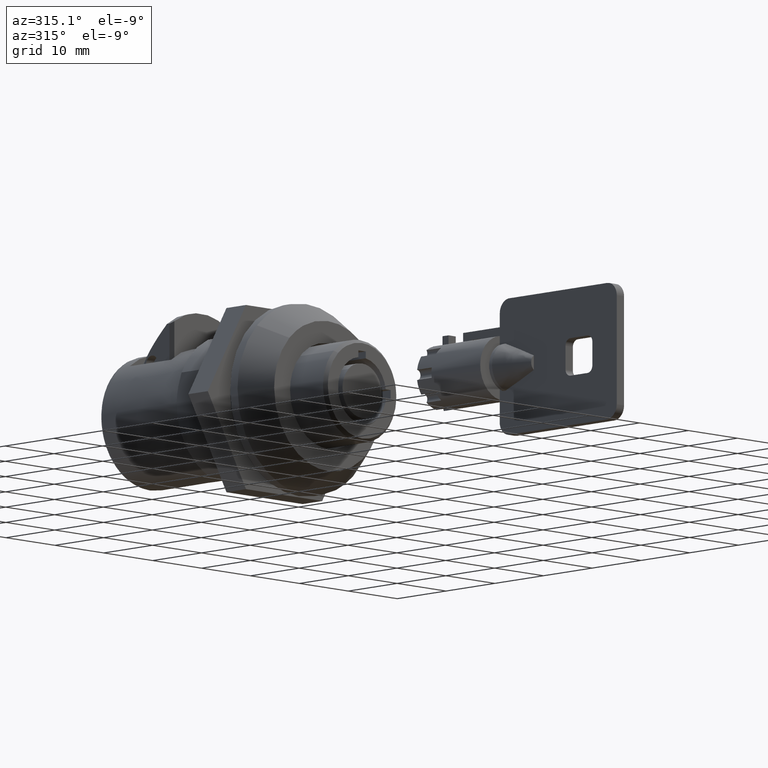
[diagram: clean part render]
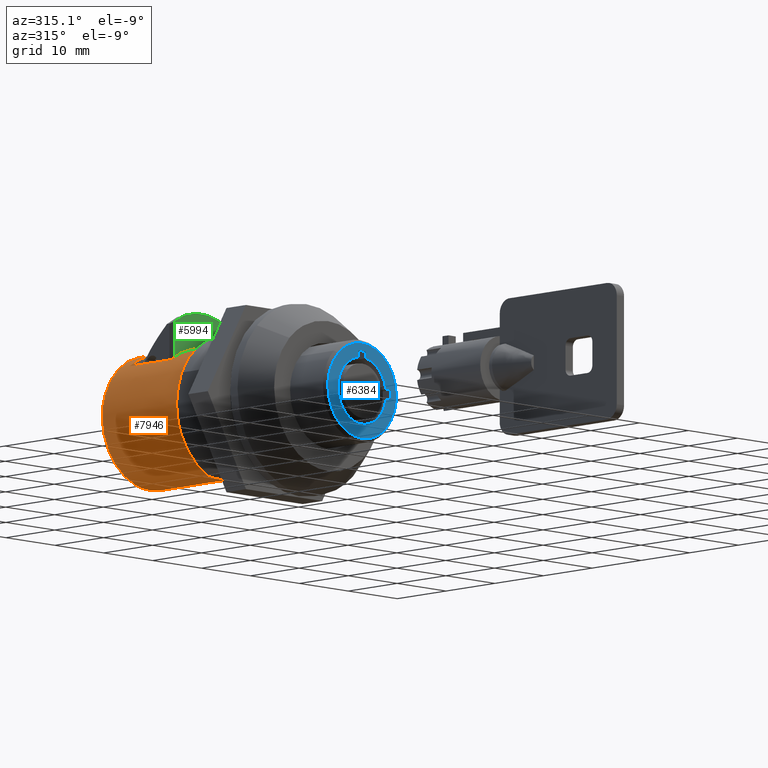
[diagram: same view with three faces highlighted in distinct colors, each labeled with its STEP entity id]
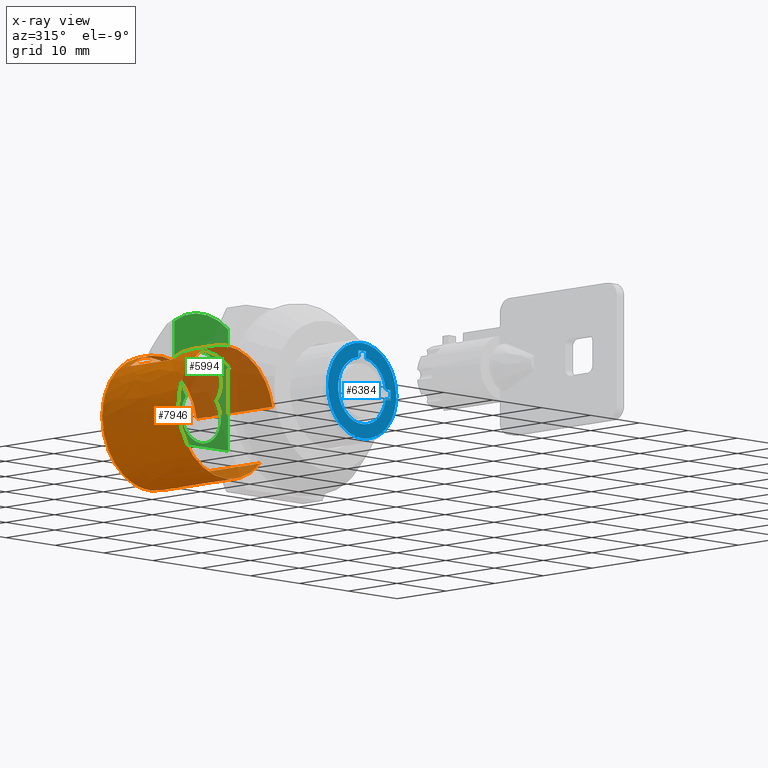
[diagram: x-ray of the same camera — body ghosted, the three highlighted faces saturated]
A machine part, auxiliary view with three faces highlighted in distinct colors.
The next image is the same camera in x-ray (body ghosted, the three faces saturated) — at least one of them is partly hidden behind the body in this view.
Their STEP definitions:

[orange] entity #7946 — the highlighted face is a freeform B-spline surface patch.
#7750=CARTESIAN_POINT('',(30.887500012417789,-9.575236335959792,1.837756542775800));
#7751=CARTESIAN_POINT('',(30.887500012417789,-8.986460965124264,4.905444342176716));
#7752=CARTESIAN_POINT('',(30.887500012417782,-6.724640534539272,7.059866123463766));
#7753=CARTESIAN_POINT('',(30.887500012417789,0.335225588924494,13.784506658003037));
#7754=CARTESIAN_POINT('',(30.887500012417782,7.059866123463766,6.724640534539272));
#7755=CARTESIAN_POINT('',(30.887500012417789,13.784506658003037,-0.335225588924494));
#7756=CARTESIAN_POINT('',(30.887500012417782,6.724640534539272,-7.059866123463766));
#7757=CARTESIAN_POINT('',(30.887500012417789,-0.335225588924494,-13.784506658003037));
#7758=CARTESIAN_POINT('',(30.887500012417782,-7.059866123463766,-6.724640534539272));
#7759=CARTESIAN_POINT('',(14.602812499689561,-9.575236335959792,1.837756542775800));
#7760=CARTESIAN_POINT('',(14.602812499689557,-8.986460965124264,4.905444342176716));
#7761=CARTESIAN_POINT('',(14.602812499689559,-6.724640534539272,7.059866123463766));
#7762=CARTESIAN_POINT('',(14.602812499689565,0.335225588924494,13.784506658003037));
#7763=CARTESIAN_POINT('',(14.602812499689559,7.059866123463766,6.724640534539272));
#7764=CARTESIAN_POINT('',(14.602812499689565,13.784506658003037,-0.335225588924494));
#7765=CARTESIAN_POINT('',(14.602812499689559,6.724640534539272,-7.059866123463766));
#7766=CARTESIAN_POINT('',(14.602812499689565,-0.335225588924494,-13.784506658003037));
#7767=CARTESIAN_POINT('',(14.602812499689559,-7.059866123463766,-6.724640534539272));
#7775=(BOUNDED_SURFACE()B_SPLINE_SURFACE(2,1,((#7750,#7759),(#7751,#7760),(#7752,#7761),(#7753,#7762),(#7754,#7763),(#7755,#7764),(#7756,#7765),(#7757,#7766),(#7758,#7767)),.UNSPECIFIED.,.F.,.F.,.U.)B_SPLINE_SURFACE_WITH_KNOTS((3,2,2,2,3),(2,2),(0.0,6.461731573020280,22.616060505570982,38.770389438121683,54.924718370672380),(0.0,16.284687512728230),.UNSPECIFIED.)GEOMETRIC_REPRESENTATION_ITEM()RATIONAL_B_SPLINE_SURFACE(((0.859411254969543,0.859411254969543),(0.882842712474619,0.882842712474619),(1.0,1.0),(0.707106781186548,0.707106781186548),(1.0,1.0),(0.707106781186548,0.707106781186548),(1.0,1.0),(0.707106781186548,0.707106781186548),(1.0,1.0)))REPRESENTATION_ITEM('')SURFACE());
#7776=CARTESIAN_POINT('',(15.0,0.0,9.750000000000000));
#7777=VERTEX_POINT('',#7776);
#7778=CARTESIAN_POINT('',(15.0,-9.575235954214422,1.837756690825241));
#7779=VERTEX_POINT('',#7778);
#7780=CARTESIAN_POINT('',(15.0,0.0,9.750000000000000));
#7781=CARTESIAN_POINT('',(15.000000000000030,-0.701378239209372,9.750134308408958));
#7782=CARTESIAN_POINT('',(14.999999999999959,-1.963774436291842,9.613098461667986));
#7783=CARTESIAN_POINT('',(15.000000000000069,-4.114769771421813,8.943202647147343));
#7784=CARTESIAN_POINT('',(14.999999999999901,-5.940571970627088,7.849894564205144));
#7785=CARTESIAN_POINT('',(15.000000000000160,-7.396122702858431,6.418186912531861));
#7786=CARTESIAN_POINT('',(14.999999999999780,-8.726195977203584,4.602339214833864));
#7787=CARTESIAN_POINT('',(15.000000000000099,-9.351534012249450,3.009125863314432));
#7788=CARTESIAN_POINT('',(15.0,-9.575235954214422,1.837756690825241));
#7789=B_SPLINE_CURVE_WITH_KNOTS('',3,(#7780,#7781,#7782,#7783,#7784,#7785,#7786,#7787,#7788),.UNSPECIFIED.,.F.,.U.,(4,1,1,1,1,1,4),(0.000000090942907,2.104148853622325,3.787520572596170,6.733354511299822,8.416681903232394,9.889614118391801,13.466708852423629),.UNSPECIFIED.);
#7790=EDGE_CURVE('',#7777,#7779,#7789,.T.);
#7791=ORIENTED_EDGE('',*,*,#7790,.T.);
#7792=CARTESIAN_POINT('',(30.500000010084879,-9.575236361634874,1.837756408862489));
#7793=VERTEX_POINT('',#7792);
#7794=CARTESIAN_POINT('',(30.500000010084879,-9.575236361634874,1.837756408862489));
#7795=CARTESIAN_POINT('',(15.0,-9.575235954214422,1.837756690825241));
#7796=QUASI_UNIFORM_CURVE('',1,(#7794,#7795),.UNSPECIFIED.,.F.,.U.);
#7797=EDGE_CURVE('',#7793,#7779,#7796,.T.);
#7798=ORIENTED_EDGE('',*,*,#7797,.F.);
#7799=CARTESIAN_POINT('',(30.500000000000000,0.0,9.750000000000000));
#7800=VERTEX_POINT('',#7799);
#7801=CARTESIAN_POINT('',(30.500000010084879,-9.575236361634874,1.837756408862489));
#7802=CARTESIAN_POINT('',(30.500000008679869,-9.364547239611097,2.940165503869704));
#7803=CARTESIAN_POINT('',(30.500000006644271,-8.757740680214649,4.537040305446049));
#7804=CARTESIAN_POINT('',(30.500000004017569,-7.282596078759746,6.598035719895504));
#7805=CARTESIAN_POINT('',(30.500000002387750,-5.864412707666842,7.876734742142462));
#7806=CARTESIAN_POINT('',(30.500000001030759,-4.042352538201674,8.941239096149648));
#7807=CARTESIAN_POINT('',(30.500000000203510,-2.174250680371034,9.590433614365638));
#7808=CARTESIAN_POINT('',(30.499999999999719,-0.701379061122600,9.750100271397827));
#7809=CARTESIAN_POINT('',(30.500000000000000,0.0,9.750000000000000));
#7810=B_SPLINE_CURVE_WITH_KNOTS('',3,(#7801,#7802,#7803,#7804,#7805,#7806,#7807,#7808,#7809),.UNSPECIFIED.,.F.,.U.,(4,1,1,1,1,1,4),(0.000000090967832,3.366678364588205,5.050042985061971,7.575009541874530,9.047940089374050,11.362543443225730,13.466709445660831),.UNSPECIFIED.);
#7811=EDGE_CURVE('',#7793,#7800,#7810,.T.);
#7812=ORIENTED_EDGE('',*,*,#7811,.T.);
#7813=CARTESIAN_POINT('',(30.500000012114910,9.746920845494230,-0.245018431286253));
#7814=VERTEX_POINT('',#7813);
#7815=CARTESIAN_POINT('',(30.500000000000000,0.0,9.750000000000000));
#7816=CARTESIAN_POINT('',(30.499999999093880,1.013092681210853,9.750480910974837));
#7817=CARTESIAN_POINT('',(30.499999998132228,2.714689931568575,9.482322325671769));
#7818=CARTESIAN_POINT('',(30.499999998196639,4.763203080173201,8.572948534103039));
#7819=CARTESIAN_POINT('',(30.499999999073658,6.368574713254065,7.463521467947231));
#7820=CARTESIAN_POINT('',(30.500000000948440,7.877704026248915,5.916434524828425));
#7821=CARTESIAN_POINT('',(30.500000003669840,8.879530921401964,4.180551368303318));
#7822=CARTESIAN_POINT('',(30.500000007422809,9.603225033190121,2.068826946260913));
#7823=CARTESIAN_POINT('',(30.500000010067211,9.771849406930603,0.727251562585743));
#7824=CARTESIAN_POINT('',(30.500000012114910,9.746920845494230,-0.245018431286253));
#7825=B_SPLINE_CURVE_WITH_KNOTS('',3,(#7815,#7816,#7817,#7818,#7819,#7820,#7821,#7822,#7823,#7824),.UNSPECIFIED.,.F.,.U.,(4,1,1,1,1,1,1,4),(0.000000347490774,3.039132615368121,5.105764066161658,6.686187409674874,8.874229731523744,11.548739831742321,12.642840747398520,15.560409197416410),.UNSPECIFIED.);
#7826=EDGE_CURVE('',#7800,#7814,#7825,.T.);
#7827=ORIENTED_EDGE('',*,*,#7826,.T.);
#7828=CARTESIAN_POINT('',(30.500000000000000,0.0,-9.750000000000000));
#7829=VERTEX_POINT('',#7828);
#7830=CARTESIAN_POINT('',(30.500000012114910,9.746920845494230,-0.245018431286253));
#7831=CARTESIAN_POINT('',(30.500000010814730,9.721731147217900,-1.265115082189658));
#7832=CARTESIAN_POINT('',(30.500000008474171,9.382850598089297,-3.101471756152618));
#7833=CARTESIAN_POINT('',(30.500000005635890,8.263049379798758,-5.328192014080990));
#7834=CARTESIAN_POINT('',(30.500000003813419,7.084300288456885,-6.758167633359849));
#7835=CARTESIAN_POINT('',(30.500000002384940,5.818356376357710,-7.878682289463930));
#7836=CARTESIAN_POINT('',(30.500000001234270,4.382460327815803,-8.782029739600427));
#7837=CARTESIAN_POINT('',(30.500000000253738,2.354588581331351,-9.550538173203449));
#7838=CARTESIAN_POINT('',(30.499999999999719,0.863424000027773,-9.750275924204781));
#7839=CARTESIAN_POINT('',(30.500000000000000,0.0,-9.750000000000000));
#7840=B_SPLINE_CURVE_WITH_KNOTS('',3,(#7830,#7831,#7832,#7833,#7834,#7835,#7836,#7837,#7838,#7839),.UNSPECIFIED.,.F.,.U.,(4,1,1,1,1,1,1,4),(0.000000337253466,3.061140910834464,5.533681545099439,7.417525461301741,8.594785953707202,10.596296500282531,12.480114029688220,15.070311516149570),.UNSPECIFIED.);
#7841=EDGE_CURVE('',#7814,#7829,#7840,.T.);
#7842=ORIENTED_EDGE('',*,*,#7841,.T.);
#7843=CARTESIAN_POINT('',(30.499999999995818,-7.059866225883638,-6.724640427013735));
#7844=VERTEX_POINT('',#7843);
#7845=CARTESIAN_POINT('',(30.500000000000000,0.0,-9.750000000000000));
#7846=CARTESIAN_POINT('',(30.499999999338499,-0.740145184888274,-9.750149389962791));
#7847=CARTESIAN_POINT('',(30.499999998450079,-2.096953021290323,-9.594730436027437));
#7848=CARTESIAN_POINT('',(30.499999998110731,-3.820554661038805,-9.018536396668702));
#7849=CARTESIAN_POINT('',(30.499999998462819,-5.496068493920325,-8.131059901282530));
#7850=CARTESIAN_POINT('',(30.499999999261359,-6.492839162516940,-7.320308494973498));
#7851=CARTESIAN_POINT('',(30.499999999995818,-7.059866225883638,-6.724640427013735));
#7852=B_SPLINE_CURVE_WITH_KNOTS('',3,(#7845,#7846,#7847,#7848,#7849,#7850,#7851),.UNSPECIFIED.,.F.,.U.,(4,1,1,1,4),(0.000000090268977,2.220403589481474,4.070679268285906,5.427633777709034,7.894748536161674),.UNSPECIFIED.);
#7853=EDGE_CURVE('',#7829,#7844,#7852,.T.);
#7854=ORIENTED_EDGE('',*,*,#7853,.T.);
#7855=CARTESIAN_POINT('',(15.0,-7.059866604420248,-6.724641386947026));
#7856=VERTEX_POINT('',#7855);
#7857=CARTESIAN_POINT('',(30.499999999995818,-7.059866225883638,-6.724640427013735));
#7858=CARTESIAN_POINT('',(15.0,-7.059866604420248,-6.724641386947026));
#7859=QUASI_UNIFORM_CURVE('',1,(#7857,#7858),.UNSPECIFIED.,.F.,.U.);
#7860=EDGE_CURVE('',#7844,#7856,#7859,.T.);
#7861=ORIENTED_EDGE('',*,*,#7860,.T.);
#7862=CARTESIAN_POINT('',(15.0,0.0,-9.750000000000000));
#7863=VERTEX_POINT('',#7862);
#7864=CARTESIAN_POINT('',(15.0,-7.059866604420248,-6.724641386947026));
#7865=CARTESIAN_POINT('',(15.0,-6.436173498619394,-7.379906755563649));
#7866=CARTESIAN_POINT('',(15.0,-5.069683735097596,-8.463092961906972));
#7867=CARTESIAN_POINT('',(15.0,-2.631424184494847,-9.507915745344079));
#7868=CARTESIAN_POINT('',(15.0,-0.904638419642506,-9.750346713921864));
#7869=CARTESIAN_POINT('',(15.0,0.0,-9.750000000000000));
#7870=B_SPLINE_CURVE_WITH_KNOTS('',3,(#7864,#7865,#7866,#7867,#7868,#7869),.UNSPECIFIED.,.F.,.U.,(4,1,1,4),(0.000000090255180,2.713824443372771,5.180924128025984,7.894748481170695),.UNSPECIFIED.);
#7871=EDGE_CURVE('',#7856,#7863,#7870,.T.);
#7872=ORIENTED_EDGE('',*,*,#7871,.T.);
#7873=CARTESIAN_POINT('',(15.0,9.749999999999279,0.000003749098724));
#7874=VERTEX_POINT('',#7873);
#7875=CARTESIAN_POINT('',(15.0,0.0,-9.750000000000000));
#7876=CARTESIAN_POINT('',(15.000000000000020,0.877444515751279,-9.750270754474048));
#7877=CARTESIAN_POINT('',(15.0,2.632241632552412,-9.511592154185697));
#7878=CARTESIAN_POINT('',(15.0,4.777801193282067,-8.591896934206536));
#7879=CARTESIAN_POINT('',(14.999999999999959,6.497216051840085,-7.348836252404584));
#7880=CARTESIAN_POINT('',(15.000000000000060,7.733467366679887,-6.034336726053471));
#7881=CARTESIAN_POINT('',(14.999999999999970,8.804341201007693,-4.343337748134421));
#7882=CARTESIAN_POINT('',(14.999999999999829,9.558089632355411,-2.353054724874983));
#7883=CARTESIAN_POINT('',(15.000000000000179,9.750184481208429,-0.797667818462141));
#7884=CARTESIAN_POINT('',(15.0,9.749999999999279,0.000003749098724));
#7885=B_SPLINE_CURVE_WITH_KNOTS('',3,(#7875,#7876,#7877,#7878,#7879,#7880,#7881,#7882,#7883,#7884),.UNSPECIFIED.,.F.,.U.,(4,1,1,1,1,1,1,4),(0.000000342032235,2.632297320754040,5.264697061244325,6.939863715187643,8.973785854081310,10.648953230941810,12.922375153078990,15.315362396130110),.UNSPECIFIED.);
#7886=EDGE_CURVE('',#7863,#7874,#7885,.T.);
#7887=ORIENTED_EDGE('',*,*,#7886,.T.);
#7888=CARTESIAN_POINT('',(15.0,9.749999999999279,0.000003749098724));
#7889=CARTESIAN_POINT('',(14.999999999999959,9.750055175266878,0.598240313241467));
#7890=CARTESIAN_POINT('',(15.000000000000041,9.635875015548640,1.834608786216606));
#7891=CARTESIAN_POINT('',(15.0,9.122484409377741,3.605197535700354));
#7892=CARTESIAN_POINT('',(14.999999999999970,8.265701744671492,5.281431817416567));
#7893=CARTESIAN_POINT('',(15.000000000000130,6.909896482676532,7.019357645396083));
#7894=CARTESIAN_POINT('',(14.999999999999741,4.939325057602498,8.557357859443359));
#7895=CARTESIAN_POINT('',(15.000000000000350,2.472741433576871,9.543388397503248));
#7896=CARTESIAN_POINT('',(14.999999999999741,0.797661107134780,9.750175688440736));
#7897=CARTESIAN_POINT('',(15.0,0.0,9.750000000000000));
#7898=B_SPLINE_CURVE_WITH_KNOTS('',3,(#7888,#7889,#7890,#7891,#7892,#7893,#7894,#7895,#7896,#7897),.UNSPECIFIED.,.F.,.U.,(4,1,1,1,1,1,1,4),(0.000000343338831,1.794711610773041,3.709186452125715,5.503995332489959,7.418430647629757,10.289970297328480,12.922371585495680,15.315358169995539),.UNSPECIFIED.);
#7899=EDGE_CURVE('',#7874,#7777,#7898,.T.);
#7900=ORIENTED_EDGE('',*,*,#7899,.T.);
#7901=EDGE_LOOP('',(#7791,#7798,#7812,#7827,#7842,#7854,#7861,#7872,#7887,#7900));
#7902=FACE_OUTER_BOUND('',#7901,.T.);
#7903=CARTESIAN_POINT('',(28.500000000000000,-6.150000000000000,7.565712127751100));
#7904=VERTEX_POINT('',#7903);
#7905=CARTESIAN_POINT('',(20.0,-6.150000000000000,7.565712127751100));
#7906=VERTEX_POINT('',#7905);
#7907=CARTESIAN_POINT('',(28.500000000000000,-6.150000000000000,7.565712127751100));
#7908=CARTESIAN_POINT('',(20.0,-6.150000000000000,7.565712127751100));
#7909=QUASI_UNIFORM_CURVE('',1,(#7907,#7908),.UNSPECIFIED.,.F.,.U.);
#7910=EDGE_CURVE('',#7904,#7906,#7909,.T.);
#7911=ORIENTED_EDGE('',*,*,#7910,.T.);
#7912=CARTESIAN_POINT('',(20.0,6.150000000000000,7.565712127751100));
#7913=VERTEX_POINT('',#7912);
#7914=CARTESIAN_POINT('',(20.0,6.150000000000000,7.565712127751100));
#7915=CARTESIAN_POINT('',(20.0,5.612171947096594,8.003071527116990));
#7916=CARTESIAN_POINT('',(20.0,4.501106420259112,8.724225730268314));
#7917=CARTESIAN_POINT('',(20.000000000000011,2.490943528558038,9.511724126402241));
#7918=CARTESIAN_POINT('',(20.000000000000021,0.486717097083306,9.813139611931476));
#7919=CARTESIAN_POINT('',(19.999999999999979,-1.665709763323689,9.675162542711606));
#7920=CARTESIAN_POINT('',(20.000000000000082,-3.887697881893104,9.068397313335977));
#7921=CARTESIAN_POINT('',(19.999999999999950,-5.397185139473829,8.178241399373215));
#7922=CARTESIAN_POINT('',(20.0,-6.150000000000000,7.565712127751100));
#7923=B_SPLINE_CURVE_WITH_KNOTS('',3,(#7914,#7915,#7916,#7917,#7918,#7919,#7920,#7921,#7922),.UNSPECIFIED.,.F.,.U.,(4,1,1,1,1,1,4),(0.000000081497276,2.079635144689636,3.951384414832141,6.446970146144251,8.110665638409412,10.398343294704350,13.309862734481010),.UNSPECIFIED.);
#7924=EDGE_CURVE('',#7913,#7906,#7923,.T.);
#7925=ORIENTED_EDGE('',*,*,#7924,.F.);
#7926=CARTESIAN_POINT('',(28.500000000000000,6.150000000000000,7.565712127751100));
#7927=VERTEX_POINT('',#7926);
#7928=CARTESIAN_POINT('',(20.0,6.150000000000000,7.565712127751100));
#7929=CARTESIAN_POINT('',(28.500000000000000,6.150000000000000,7.565712127751100));
#7930=QUASI_UNIFORM_CURVE('',1,(#7928,#7929),.UNSPECIFIED.,.F.,.U.);
#7931=EDGE_CURVE('',#7913,#7927,#7930,.T.);
#7932=ORIENTED_EDGE('',*,*,#7931,.T.);
#7933=CARTESIAN_POINT('',(28.500000000000000,6.150000000000000,7.565712127751100));
#7934=CARTESIAN_POINT('',(28.500000000000011,5.236079424019360,8.309812792247559));
#7935=CARTESIAN_POINT('',(28.500000000000021,3.319599651728372,9.358218261331457));
#7936=CARTESIAN_POINT('',(28.499999999999979,0.625603119142082,9.822226621812375));
#7937=CARTESIAN_POINT('',(28.500000000000028,-1.457378329040933,9.688357441602079));
#7938=CARTESIAN_POINT('',(28.499999999999940,-3.690510294985088,9.154911291412327));
#7939=CARTESIAN_POINT('',(28.500000000000028,-5.236083141920943,8.309989769256879));
#7940=CARTESIAN_POINT('',(28.500000000000000,-6.150000000000000,7.565712127751100));
#7941=B_SPLINE_CURVE_WITH_KNOTS('',3,(#7933,#7934,#7935,#7936,#7937,#7938,#7939,#7940),.UNSPECIFIED.,.F.,.U.,(4,1,1,1,1,4),(0.000000081497276,3.535438991593674,6.446970146144251,8.110665638409412,9.774423824384506,13.309862734481010),.UNSPECIFIED.);
#7942=EDGE_CURVE('',#7927,#7904,#7941,.T.);
#7943=ORIENTED_EDGE('',*,*,#7942,.T.);
#7944=EDGE_LOOP('',(#7911,#7925,#7932,#7943));
#7945=FACE_BOUND('',#7944,.T.);
#7946=ADVANCED_FACE('',(#7902,#7945),#7775,.T.);

[blue] entity #6384 — the highlighted face is a freeform B-spline surface patch.
#4472=CARTESIAN_POINT('',(-13.0,0.0,-7.000000000000114));
#4473=VERTEX_POINT('',#4472);
#4474=CARTESIAN_POINT('',(-13.000000552268240,-4.906363689170467,-4.992751961596387));
#4475=VERTEX_POINT('',#4474);
#4476=CARTESIAN_POINT('',(-13.0,0.0,-7.000000000000114));
#4477=CARTESIAN_POINT('',(-13.000000095632300,-0.849599314903377,-7.000729520967249));
#4478=CARTESIAN_POINT('',(-13.000000248562630,-2.208236277278684,-6.749419161451716));
#4479=CARTESIAN_POINT('',(-13.000000431203469,-3.830821110366967,-5.918194350057527));
#4480=CARTESIAN_POINT('',(-13.000000515898350,-4.583252934049971,-5.310341078734260));
#4481=CARTESIAN_POINT('',(-13.000000552268240,-4.906363689170467,-4.992751961596387));
#4482=B_SPLINE_CURVE_WITH_KNOTS('',3,(#4476,#4477,#4478,#4479,#4480,#4481),.UNSPECIFIED.,.F.,.U.,(4,1,1,4),(0.000000072219833,2.548526982059505,4.077625060859893,5.436833390239732),.UNSPECIFIED.);
#4483=EDGE_CURVE('',#4473,#4475,#4482,.T.);
#4485=CARTESIAN_POINT('',(-13.0,6.999999999998605,-0.000004420047930));
#4486=VERTEX_POINT('',#4485);
#4487=CARTESIAN_POINT('',(-13.0,6.999999999998605,-0.000004420047930));
#4488=CARTESIAN_POINT('',(-13.000000000000011,7.000220711326477,-0.629976646250699));
#4489=CARTESIAN_POINT('',(-12.999999999999989,6.852067339827615,-1.717948172973163));
#4490=CARTESIAN_POINT('',(-13.000000000000020,6.292878200999828,-3.167563685531336));
#4491=CARTESIAN_POINT('',(-12.999999999999980,5.461751405552126,-4.480352292705312));
#4492=CARTESIAN_POINT('',(-13.000000000000011,4.344952617088413,-5.570016970781660));
#4493=CARTESIAN_POINT('',(-12.999999999999931,2.913481103526271,-6.427959812416469));
#4494=CARTESIAN_POINT('',(-13.000000000000140,1.488994018598520,-6.898551220230595));
#4495=CARTESIAN_POINT('',(-12.999999999999851,0.458134999053154,-7.000032669019811));
#4496=CARTESIAN_POINT('',(-13.0,0.0,-7.000000000000114));
#4497=B_SPLINE_CURVE_WITH_KNOTS('',3,(#4487,#4488,#4489,#4490,#4491,#4492,#4493,#4494,#4495,#4496),.UNSPECIFIED.,.F.,.U.,(4,1,1,1,1,1,1,4),(0.000000106484272,1.889882315947640,3.264406930904334,4.638875999999804,6.528756027472364,7.903251266435142,9.621400524835721,10.995847719067980),.UNSPECIFIED.);
#4498=EDGE_CURVE('',#4486,#4473,#4497,.T.);
#4500=CARTESIAN_POINT('',(-13.000000552268240,4.906363689170472,4.992751961596163));
#4501=VERTEX_POINT('',#4500);
#4502=CARTESIAN_POINT('',(-13.000000552268240,4.906363689170472,4.992751961596163));
#4503=CARTESIAN_POINT('',(-13.000000498416449,5.402201906955138,4.505907036929948));
#4504=CARTESIAN_POINT('',(-13.000000379378250,6.211708166459613,3.429747592923877));
#4505=CARTESIAN_POINT('',(-13.000000185749210,6.870211600134598,1.679252311611264));
#4506=CARTESIAN_POINT('',(-13.000000057645130,7.000066335331209,0.521133963390208));
#4507=CARTESIAN_POINT('',(-13.0,6.999999999998605,-0.000004420047930));
#4508=B_SPLINE_CURVE_WITH_KNOTS('',3,(#4502,#4503,#4504,#4505,#4506,#4507),.UNSPECIFIED.,.F.,.U.,(4,1,1,4),(0.000000044546796,2.084637527535926,3.995545612049735,5.559020038505226),.UNSPECIFIED.);
#4509=EDGE_CURVE('',#4501,#4486,#4508,.T.);
#4580=CARTESIAN_POINT('',(-13.0,-6.999999999998604,0.000004420047726));
#4581=VERTEX_POINT('',#4580);
#4582=CARTESIAN_POINT('',(-13.000000552268240,-4.906363689170467,-4.992751961596387));
#4583=CARTESIAN_POINT('',(-13.000000498413771,-5.402170948126863,-4.505882786107706));
#4584=CARTESIAN_POINT('',(-13.000000379379870,-6.211710635529983,-3.429761870037550));
#4585=CARTESIAN_POINT('',(-13.000000185748680,-6.870224368612121,-1.679248012729313));
#4586=CARTESIAN_POINT('',(-13.000000057645421,-7.000061796419812,-0.521136103680417));
#4587=CARTESIAN_POINT('',(-13.0,-6.999999999998604,0.000004420047726));
#4588=B_SPLINE_CURVE_WITH_KNOTS('',3,(#4582,#4583,#4584,#4585,#4586,#4587),.UNSPECIFIED.,.F.,.U.,(4,1,1,4),(0.000000044546829,2.084637527535930,3.995545612049750,5.559020038505250),.UNSPECIFIED.);
#4589=EDGE_CURVE('',#4475,#4581,#4588,.T.);
#4635=CARTESIAN_POINT('',(-13.0,0.0,6.999999999999886));
#4636=VERTEX_POINT('',#4635);
#4637=CARTESIAN_POINT('',(-13.0,0.0,6.999999999999886));
#4638=CARTESIAN_POINT('',(-13.000000070123640,0.622980017962860,7.000197624966170));
#4639=CARTESIAN_POINT('',(-13.000000203978470,1.812149348517869,6.840189635489311));
#4640=CARTESIAN_POINT('',(-13.000000394174711,3.501857548845936,6.148952146951348));
#4641=CARTESIAN_POINT('',(-13.000000502267040,4.462151554637546,5.429535702133948));
#4642=CARTESIAN_POINT('',(-13.000000552268240,4.906363689170472,4.992751961596163));
#4643=B_SPLINE_CURVE_WITH_KNOTS('',3,(#4637,#4638,#4639,#4640,#4641,#4642),.UNSPECIFIED.,.F.,.U.,(4,1,1,4),(0.000000072219888,1.868930616108816,3.567902846526012,5.436833390239736),.UNSPECIFIED.);
#4644=EDGE_CURVE('',#4636,#4501,#4643,.T.);
#4646=CARTESIAN_POINT('',(-13.0,-6.999999999998604,0.000004420047726));
#4647=CARTESIAN_POINT('',(-13.000000000000011,-7.000143045021721,0.572694364046498));
#4648=CARTESIAN_POINT('',(-12.999999999999980,-6.879790797651879,1.546157362371387));
#4649=CARTESIAN_POINT('',(-13.000000000000020,-6.319113123301164,3.176962104823619));
#4650=CARTESIAN_POINT('',(-12.999999999999980,-5.370347135409041,4.635457655351527));
#4651=CARTESIAN_POINT('',(-13.0,-4.015567401242580,5.803529495609436));
#4652=CARTESIAN_POINT('',(-13.000000000000011,-2.290118506444185,6.726179120746536));
#4653=CARTESIAN_POINT('',(-13.000000000000011,-0.916470651136473,7.000913730613481));
#4654=CARTESIAN_POINT('',(-13.0,0.0,6.999999999999886));
#4655=B_SPLINE_CURVE_WITH_KNOTS('',3,(#4646,#4647,#4648,#4649,#4650,#4651,#4652,#4653,#4654),.UNSPECIFIED.,.F.,.U.,(4,1,1,1,1,1,4),(0.000000106484013,1.718059863131499,2.920780155358714,5.154308243862281,6.872371183961098,8.246885851933575,10.995847719067990),.UNSPECIFIED.);
#4656=EDGE_CURVE('',#4581,#4636,#4655,.T.);
#6131=CARTESIAN_POINT('',(-13.0,-5.842261868177020,0.749999999999886));
#6132=VERTEX_POINT('',#6131);
#6133=CARTESIAN_POINT('',(-13.0,-4.842261868176310,0.749999999999886));
#6134=VERTEX_POINT('',#6133);
#6135=CARTESIAN_POINT('',(-13.0,-5.842261868177020,0.749999999999886));
#6136=CARTESIAN_POINT('',(-13.0,-4.842261868176310,0.749999999999886));
#6137=QUASI_UNIFORM_CURVE('',1,(#6135,#6136),.UNSPECIFIED.,.F.,.U.);
#6138=EDGE_CURVE('',#6132,#6134,#6137,.T.);
#6159=CARTESIAN_POINT('',(-13.0,-5.842261868177020,-0.750000000000114));
#6160=VERTEX_POINT('',#6159);
#6161=CARTESIAN_POINT('',(-13.0,-5.842261868177020,-0.750000000000114));
#6162=CARTESIAN_POINT('',(-13.0,-5.842261868177020,0.749999999999886));
#6163=QUASI_UNIFORM_CURVE('',1,(#6161,#6162),.UNSPECIFIED.,.F.,.U.);
#6164=EDGE_CURVE('',#6160,#6132,#6163,.T.);
#6181=CARTESIAN_POINT('',(-13.0,-4.842261868176879,-0.750000000000211));
#6182=VERTEX_POINT('',#6181);
#6183=CARTESIAN_POINT('',(-13.0,-4.842261868176879,-0.750000000000211));
#6184=CARTESIAN_POINT('',(-13.0,-5.842261868177020,-0.750000000000114));
#6185=QUASI_UNIFORM_CURVE('',1,(#6183,#6184),.UNSPECIFIED.,.F.,.U.);
#6186=EDGE_CURVE('',#6182,#6160,#6185,.T.);
#6220=CARTESIAN_POINT('',(-13.0,0.750000000000000,4.842261868176990));
#6221=VERTEX_POINT('',#6220);
#6222=CARTESIAN_POINT('',(-13.0,3.464823309140674,-3.464823146487603));
#6223=VERTEX_POINT('',#6222);
#6224=CARTESIAN_POINT('',(-13.0,0.750000000000000,4.842261868176990));
#6225=CARTESIAN_POINT('',(-13.000000000000020,1.249985127825837,4.765057919322899));
#6226=CARTESIAN_POINT('',(-13.0,2.252598345399164,4.445192322745147));
#6227=CARTESIAN_POINT('',(-12.999999999999989,3.521542449287496,3.526426892742556));
#6228=CARTESIAN_POINT('',(-13.000000000000011,4.320735025758559,2.419525343936929));
#6229=CARTESIAN_POINT('',(-13.000000000000041,4.787285711602817,1.237864723895902));
#6230=CARTESIAN_POINT('',(-12.999999999999950,4.974615629192222,-0.053762137333947));
#6231=CARTESIAN_POINT('',(-13.000000000000030,4.778205634419206,-1.291525033365633));
#6232=CARTESIAN_POINT('',(-12.999999999999980,4.275089476885258,-2.486748557376560));
#6233=CARTESIAN_POINT('',(-13.0,3.822766815192752,-3.107293055820263));
#6234=CARTESIAN_POINT('',(-13.0,3.464823309140674,-3.464823146487603));
#6235=B_SPLINE_CURVE_WITH_KNOTS('',3,(#6224,#6225,#6226,#6227,#6228,#6229,#6230,#6231,#6232,#6233,#6234),.UNSPECIFIED.,.F.,.U.,(4,1,1,1,1,1,1,1,4),(0.000000895670746,1.517678821618386,3.119740573615110,4.637501027309718,5.564815527565518,6.913903430254898,8.515997335776074,9.274886329316878,10.792526240900489),.UNSPECIFIED.);
#6236=EDGE_CURVE('',#6221,#6223,#6235,.T.);
#6238=CARTESIAN_POINT('',(-13.0,3.464823309140674,-3.464823146487603));
#6239=CARTESIAN_POINT('',(-12.999999999999989,3.206513210036335,-3.723173728945737));
#6240=CARTESIAN_POINT('',(-13.000000000000050,2.521296403460055,-4.270181990740550));
#6241=CARTESIAN_POINT('',(-12.999999999999890,1.319735737451433,-4.787992182261381));
#6242=CARTESIAN_POINT('',(-13.000000000000110,0.025816275099883,-4.947637255845056));
#6243=CARTESIAN_POINT('',(-12.999999999999890,-1.209872433107786,-4.801131182246350));
#6244=CARTESIAN_POINT('',(-13.000000000000099,-2.534017007826596,-4.291885117031716));
#6245=CARTESIAN_POINT('',(-12.999999999999799,-3.705665086358278,-3.333016274684272));
#6246=CARTESIAN_POINT('',(-13.000000000000240,-4.512580793396622,-2.063974264178651));
#6247=CARTESIAN_POINT('',(-12.999999999999581,-4.773590534598285,-1.194408473226191));
#6248=CARTESIAN_POINT('',(-13.0,-4.842261868176879,-0.750000000000211));
#6249=B_SPLINE_CURVE_WITH_KNOTS('',3,(#6238,#6239,#6240,#6241,#6242,#6243,#6244,#6245,#6246,#6247,#6248),.UNSPECIFIED.,.F.,.U.,(4,1,1,1,1,1,1,1,4),(0.000000895672329,1.096045561171652,2.613813787580607,3.878631739239294,4.974706997365447,6.323649883096020,8.094395052291043,9.443507636846592,10.792526470934950),.UNSPECIFIED.);
#6250=EDGE_CURVE('',#6223,#6182,#6249,.T.);
#6268=CARTESIAN_POINT('',(-13.0,0.749999999999901,5.842261868176990));
#6269=VERTEX_POINT('',#6268);
#6270=CARTESIAN_POINT('',(-13.0,0.749999999999901,5.842261868176990));
#6271=CARTESIAN_POINT('',(-13.0,0.750000000000000,4.842261868176990));
#6272=QUASI_UNIFORM_CURVE('',1,(#6270,#6271),.UNSPECIFIED.,.F.,.U.);
#6273=EDGE_CURVE('',#6269,#6221,#6272,.T.);
#6290=CARTESIAN_POINT('',(-13.0,-0.749999999999901,5.842261868176879));
#6291=VERTEX_POINT('',#6290);
#6292=CARTESIAN_POINT('',(-13.0,-0.749999999999901,5.842261868176879));
#6293=CARTESIAN_POINT('',(-13.0,0.749999999999901,5.842261868176990));
#6294=QUASI_UNIFORM_CURVE('',1,(#6292,#6293),.UNSPECIFIED.,.F.,.U.);
#6295=EDGE_CURVE('',#6291,#6269,#6294,.T.);
#6312=CARTESIAN_POINT('',(-13.0,-0.749999999999901,4.842261868176280));
#6313=VERTEX_POINT('',#6312);
#6314=CARTESIAN_POINT('',(-13.0,-0.749999999999901,4.842261868176280));
#6315=CARTESIAN_POINT('',(-13.0,-0.749999999999901,5.842261868176879));
#6316=QUASI_UNIFORM_CURVE('',1,(#6314,#6315),.UNSPECIFIED.,.F.,.U.);
#6317=EDGE_CURVE('',#6313,#6291,#6316,.T.);
#6343=CARTESIAN_POINT('',(-13.0,-4.842261868176310,0.749999999999886));
#6344=CARTESIAN_POINT('',(-13.000000000000020,-4.773326961331526,1.196148889151617));
#6345=CARTESIAN_POINT('',(-12.999999999999980,-4.548252516503336,1.944300815254733));
#6346=CARTESIAN_POINT('',(-13.000000000000030,-3.943510906563505,2.979496074456091));
#6347=CARTESIAN_POINT('',(-12.999999999999970,-3.229980717800053,3.736549045364123));
#6348=CARTESIAN_POINT('',(-13.000000000000069,-2.159668861778075,4.465441372081682));
#6349=CARTESIAN_POINT('',(-12.999999999999890,-1.323730264257536,4.753898018619834));
#6350=CARTESIAN_POINT('',(-13.0,-0.749999999999901,4.842261868176280));
#6351=B_SPLINE_CURVE_WITH_KNOTS('',3,(#6343,#6344,#6345,#6346,#6347,#6348,#6349,#6350),.UNSPECIFIED.,.F.,.U.,(4,1,1,1,1,4),(0.000000320018982,1.354299340069509,2.321695602135296,3.579168950442237,4.449834912732137,6.191082964801126),.UNSPECIFIED.);
#6352=EDGE_CURVE('',#6134,#6313,#6351,.T.);
#6360=CARTESIAN_POINT('',(-13.0,7.699299972863749,7.699299972865170));
#6361=CARTESIAN_POINT('',(-13.0,-7.699300348373010,7.699299972865170));
#6362=CARTESIAN_POINT('',(-13.0,7.699299972863749,-7.699300348374660));
#6363=CARTESIAN_POINT('',(-13.0,-7.699300348373010,-7.699300348374660));
#6364=B_SPLINE_SURFACE_WITH_KNOTS('',1,1,((#6360,#6362),(#6361,#6363)),.UNSPECIFIED.,.F.,.F.,.U.,(2,2),(2,2),(0.0,15.398600321236760),(0.0,15.398600321239829),.UNSPECIFIED.);
#6365=ORIENTED_EDGE('',*,*,#4483,.T.);
#6366=ORIENTED_EDGE('',*,*,#4589,.T.);
#6367=ORIENTED_EDGE('',*,*,#4656,.T.);
#6368=ORIENTED_EDGE('',*,*,#4644,.T.);
#6369=ORIENTED_EDGE('',*,*,#4509,.T.);
#6370=ORIENTED_EDGE('',*,*,#4498,.T.);
#6371=EDGE_LOOP('',(#6365,#6366,#6367,#6368,#6369,#6370));
#6372=FACE_OUTER_BOUND('',#6371,.T.);
#6373=ORIENTED_EDGE('',*,*,#6352,.F.);
#6374=ORIENTED_EDGE('',*,*,#6138,.F.);
#6375=ORIENTED_EDGE('',*,*,#6164,.F.);
#6376=ORIENTED_EDGE('',*,*,#6186,.F.);
#6377=ORIENTED_EDGE('',*,*,#6250,.F.);
#6378=ORIENTED_EDGE('',*,*,#6236,.F.);
#6379=ORIENTED_EDGE('',*,*,#6273,.F.);
#6380=ORIENTED_EDGE('',*,*,#6295,.F.);
#6381=ORIENTED_EDGE('',*,*,#6317,.F.);
#6382=EDGE_LOOP('',(#6373,#6374,#6375,#6376,#6377,#6378,#6379,#6380,#6381));
#6383=FACE_BOUND('',#6382,.T.);
#6384=ADVANCED_FACE('',(#6372,#6383),#6364,.F.);

[green] entity #5994 — the highlighted face is a freeform B-spline surface patch.
#3525=CARTESIAN_POINT('',(20.000000000008079,-4.059067700204118,4.664007475797704));
#3526=VERTEX_POINT('',#3525);
#3527=CARTESIAN_POINT('',(20.0,-3.084624964136685,2.546583756844490));
#3528=VERTEX_POINT('',#3527);
#3529=CARTESIAN_POINT('',(20.000000000008079,-4.059067700204118,4.664007475797704));
#3530=CARTESIAN_POINT('',(20.000000000006938,-4.006518445684709,4.298450837290671));
#3531=CARTESIAN_POINT('',(20.000000000004398,-3.787993506717510,3.534047687366308));
#3532=CARTESIAN_POINT('',(20.000000000001510,-3.360616583828423,2.861238851095451));
#3533=CARTESIAN_POINT('',(20.0,-3.084624964136685,2.546583756844490));
#3534=B_SPLINE_CURVE_WITH_KNOTS('',3,(#3529,#3530,#3531,#3532,#3533),.UNSPECIFIED.,.F.,.U.,(4,1,4),(0.000000061713878,1.107925928226118,2.363505146299601),.UNSPECIFIED.);
#3535=EDGE_CURVE('',#3526,#3528,#3534,.T.);
#3594=CARTESIAN_POINT('',(20.0,-2.834937529812149,8.211491115401401));
#3595=VERTEX_POINT('',#3594);
#3601=CARTESIAN_POINT('',(20.0,-0.001722810071820,9.348623928825074));
#3602=VERTEX_POINT('',#3601);
#3603=CARTESIAN_POINT('',(20.0,-0.001722810071820,9.348623928825074));
#3604=CARTESIAN_POINT('',(20.0,-0.555758693512724,9.349161258835824));
#3605=CARTESIAN_POINT('',(20.000000000000011,-1.597897432067037,9.133540506177619));
#3606=CARTESIAN_POINT('',(19.999999999999989,-2.481913399508175,8.549632453860577));
#3607=CARTESIAN_POINT('',(20.0,-2.834937529812149,8.211491115401401));
#3608=B_SPLINE_CURVE_WITH_KNOTS('',3,(#3603,#3604,#3605,#3606,#3607),.UNSPECIFIED.,.F.,.U.,(4,1,4),(0.000000119670092,1.661875428375270,3.128298061002914),.UNSPECIFIED.);
#3609=EDGE_CURVE('',#3602,#3595,#3608,.T.);
#3611=CARTESIAN_POINT('',(20.0,3.083691446851095,2.547714085335480));
#3612=VERTEX_POINT('',#3611);
#3613=CARTESIAN_POINT('',(20.0,3.083691446851095,2.547714085335480));
#3614=CARTESIAN_POINT('',(20.0,3.325388381986121,2.823605911143285));
#3615=CARTESIAN_POINT('',(19.999999999999972,3.734003285499123,3.440783314589810));
#3616=CARTESIAN_POINT('',(20.000000000000021,4.064362233551162,4.449005191029077));
#3617=CARTESIAN_POINT('',(19.999999999999972,4.126024913806971,5.382456505010598));
#3618=CARTESIAN_POINT('',(20.000000000000050,3.982769741961369,6.403584288525997));
#3619=CARTESIAN_POINT('',(19.999999999999918,3.539410604054659,7.454991706989893));
#3620=CARTESIAN_POINT('',(20.0,2.641144872643446,8.476919370692055));
#3621=CARTESIAN_POINT('',(20.000000000000028,1.440779027249715,9.176289401769926));
#3622=CARTESIAN_POINT('',(19.999999999999890,0.487345570169842,9.349069575095850));
#3623=CARTESIAN_POINT('',(20.0,-0.001722810071820,9.348623928825074));
#3624=B_SPLINE_CURVE_WITH_KNOTS('',3,(#3613,#3614,#3615,#3616,#3617,#3618,#3619,#3620,#3621,#3622,#3623),.UNSPECIFIED.,.F.,.U.,(4,1,1,1,1,1,1,1,4),(0.000000924180883,1.100357205743284,2.200718093231213,3.154425475815215,3.887967226812574,5.281615482665549,6.528774306501804,7.922647305842653,9.389737657902042),.UNSPECIFIED.);
#3625=EDGE_CURVE('',#3612,#3602,#3624,.T.);
#3655=CARTESIAN_POINT('',(20.0,-2.834937529812149,8.211491115401401));
#3656=CARTESIAN_POINT('',(20.000000000001450,-3.275919475598765,7.791086441758169));
#3657=CARTESIAN_POINT('',(20.000000000003819,-3.802817669776910,6.992227120761938));
#3658=CARTESIAN_POINT('',(20.000000000006281,-4.117604811932492,5.722066406708130));
#3659=CARTESIAN_POINT('',(20.000000000007681,-4.111291728674690,5.025698033227866));
#3660=CARTESIAN_POINT('',(20.000000000008079,-4.059067700204118,4.664007475797704));
#3661=B_SPLINE_CURVE_WITH_KNOTS('',3,(#3655,#3656,#3657,#3658,#3659,#3660),.UNSPECIFIED.,.F.,.U.,(4,1,1,4),(0.000000184069394,1.827232484496721,2.801712799471384,3.898039169611026),.UNSPECIFIED.);
#3662=EDGE_CURVE('',#3595,#3526,#3661,.T.);
#3709=CARTESIAN_POINT('',(20.000000000019160,-3.259185341339177,-2.318989200233620));
#3710=VERTEX_POINT('',#3709);
#3711=CARTESIAN_POINT('',(20.0,-3.084624964136685,2.546583756844490));
#3712=CARTESIAN_POINT('',(20.000000000002419,-3.397368393411713,2.168392273333283));
#3713=CARTESIAN_POINT('',(20.000000000006921,-3.840324424168417,1.367858538956685));
#3714=CARTESIAN_POINT('',(20.000000000012712,-4.067487936679370,0.035472125699857));
#3715=CARTESIAN_POINT('',(20.000000000016978,-3.879753495897507,-1.221512854584257));
#3716=CARTESIAN_POINT('',(20.000000000018531,-3.496392656802305,-1.985879951677433));
#3717=CARTESIAN_POINT('',(20.000000000019160,-3.259185341339177,-2.318989200233620));
#3718=B_SPLINE_CURVE_WITH_KNOTS('',3,(#3711,#3712,#3713,#3714,#3715,#3716,#3717),.UNSPECIFIED.,.F.,.U.,(4,1,1,1,4),(0.000000401513548,1.472165256970169,2.698865304195949,4.007536470345093,5.234329321358044),.UNSPECIFIED.);
#3719=EDGE_CURVE('',#3528,#3710,#3718,.T.);
#3733=CARTESIAN_POINT('',(20.0,2.679797957906777,-2.969626728193181));
#3734=VERTEX_POINT('',#3733);
#3735=CARTESIAN_POINT('',(20.0,2.679797957906777,-2.969626728193181));
#3736=CARTESIAN_POINT('',(19.999999999999979,2.916022212787964,-2.756515265710290));
#3737=CARTESIAN_POINT('',(19.999999999999961,3.379468010489344,-2.225275000254970));
#3738=CARTESIAN_POINT('',(20.000000000000060,3.888062148983860,-1.185852280281417));
#3739=CARTESIAN_POINT('',(20.000000000000028,4.050739661647715,-0.068508220358955));
#3740=CARTESIAN_POINT('',(19.999999999999869,3.876785133534348,1.264309133581721));
#3741=CARTESIAN_POINT('',(20.000000000000110,3.469716037481187,2.082180569764871));
#3742=CARTESIAN_POINT('',(20.0,3.083691446851095,2.547714085335480));
#3743=B_SPLINE_CURVE_WITH_KNOTS('',3,(#3735,#3736,#3737,#3738,#3739,#3740,#3741,#3742),.UNSPECIFIED.,.F.,.U.,(4,1,1,1,1,4),(0.000000500625762,0.954489386207447,2.099937426001804,3.436174874064488,4.295229988086652,6.108797276253971),.UNSPECIFIED.);
#3744=EDGE_CURVE('',#3734,#3612,#3743,.T.);
#3827=CARTESIAN_POINT('',(20.0,0.000740766560139,-3.999999931408227));
#3828=VERTEX_POINT('',#3827);
#3829=CARTESIAN_POINT('',(20.000000000019160,-3.259185341339177,-2.318989200233620));
#3830=CARTESIAN_POINT('',(20.000000000017391,-2.960435416880810,-2.739814375605717));
#3831=CARTESIAN_POINT('',(20.000000000013781,-2.343698524126548,-3.323344595747456));
#3832=CARTESIAN_POINT('',(20.000000000007010,-1.189838210157855,-3.875502243712609));
#3833=CARTESIAN_POINT('',(20.000000000002551,-0.435883778516267,-4.000315248254997));
#3834=CARTESIAN_POINT('',(20.0,0.000740766560139,-3.999999931408227));
#3835=B_SPLINE_CURVE_WITH_KNOTS('',3,(#3829,#3830,#3831,#3832,#3833,#3834),.UNSPECIFIED.,.F.,.U.,(4,1,1,4),(0.000000181313491,1.548012916949311,2.500546169509617,3.810392633242685),.UNSPECIFIED.);
#3836=EDGE_CURVE('',#3710,#3828,#3835,.T.);
#3860=CARTESIAN_POINT('',(20.0,0.000740766560139,-3.999999931408227));
#3861=CARTESIAN_POINT('',(20.000000000000028,0.459516786573455,-4.000235146860546));
#3862=CARTESIAN_POINT('',(19.999999999999950,1.437830459139048,-3.829418216854595));
#3863=CARTESIAN_POINT('',(20.000000000000021,2.294163984317915,-3.318407610304834));
#3864=CARTESIAN_POINT('',(20.0,2.679797957906777,-2.969626728193181));
#3865=B_SPLINE_CURVE_WITH_KNOTS('',3,(#3860,#3861,#3862,#3863,#3864),.UNSPECIFIED.,.F.,.U.,(4,1,4),(0.000000125273923,1.376235907093768,2.935886568220497),.UNSPECIFIED.);
#3866=EDGE_CURVE('',#3828,#3734,#3865,.T.);
#5271=CARTESIAN_POINT('',(20.0,-5.500961797166339,13.299245093504281));
#5272=VERTEX_POINT('',#5271);
#5280=CARTESIAN_POINT('',(20.0,-5.500961797166211,-4.501376000548020));
#5281=VERTEX_POINT('',#5280);
#5282=CARTESIAN_POINT('',(20.0,-5.500961797166211,-4.501376000548020));
#5283=CARTESIAN_POINT('',(20.0,-5.500961797166339,13.299245093504281));
#5284=QUASI_UNIFORM_CURVE('',1,(#5282,#5283),.UNSPECIFIED.,.F.,.U.);
#5285=EDGE_CURVE('',#5281,#5272,#5284,.T.);
#5307=CARTESIAN_POINT('',(20.0,5.500961797166211,-4.501376000548020));
#5308=VERTEX_POINT('',#5307);
#5316=CARTESIAN_POINT('',(20.0,5.500961797166330,13.297930600776439));
#5317=VERTEX_POINT('',#5316);
#5318=CARTESIAN_POINT('',(20.0,5.500961797166330,13.297930600776439));
#5319=CARTESIAN_POINT('',(20.0,5.500961797166211,-4.501376000548020));
#5320=QUASI_UNIFORM_CURVE('',1,(#5318,#5319),.UNSPECIFIED.,.F.,.U.);
#5321=EDGE_CURVE('',#5317,#5308,#5320,.T.);
#5534=CARTESIAN_POINT('',(20.0,5.500961797166211,-4.501376000548020));
#5535=CARTESIAN_POINT('',(20.0,-5.500961797166211,-4.501376000548020));
#5536=QUASI_UNIFORM_CURVE('',1,(#5534,#5535),.UNSPECIFIED.,.F.,.U.);
#5537=EDGE_CURVE('',#5308,#5281,#5536,.T.);
#5912=CARTESIAN_POINT('',(20.0,5.500961797166330,13.297930600776439));
#5913=CARTESIAN_POINT('',(20.0,4.546355236707845,13.951542444434830));
#5914=CARTESIAN_POINT('',(20.000000000000028,2.796364924966232,14.734688976954640));
#5915=CARTESIAN_POINT('',(19.999999999999989,0.062894217966052,15.095448765617069));
#5916=CARTESIAN_POINT('',(20.000000000000011,-2.683148565405111,14.786070600679130));
#5917=CARTESIAN_POINT('',(20.000000000000021,-4.546194069523659,13.952555765031869));
#5918=CARTESIAN_POINT('',(20.0,-5.500961797166339,13.299245093504281));
#5919=B_SPLINE_CURVE_WITH_KNOTS('',3,(#5912,#5913,#5914,#5915,#5916,#5917,#5918),.UNSPECIFIED.,.F.,.U.,(4,1,1,1,4),(0.000000185797989,3.470395005857531,5.662263324490153,8.219352465270212,11.689747285329769),.UNSPECIFIED.);
#5920=EDGE_CURVE('',#5317,#5272,#5919,.T.);
#5973=CARTESIAN_POINT('',(20.0,-6.050507859379394,-5.475402466015447));
#5974=CARTESIAN_POINT('',(20.0,6.050508154473970,-5.475402466015447));
#5975=CARTESIAN_POINT('',(20.0,-6.050507859379394,15.972677244240449));
#5976=CARTESIAN_POINT('',(20.0,6.050508154473970,15.972677244240449));
#5977=B_SPLINE_SURFACE_WITH_KNOTS('',1,1,((#5973,#5975),(#5974,#5976)),.UNSPECIFIED.,.F.,.F.,.U.,(2,2),(2,2),(0.0,12.101016013853361),(0.0,21.448079710255900),.UNSPECIFIED.);
#5978=ORIENTED_EDGE('',*,*,#5920,.F.);
#5979=ORIENTED_EDGE('',*,*,#5321,.T.);
#5980=ORIENTED_EDGE('',*,*,#5537,.T.);
#5981=ORIENTED_EDGE('',*,*,#5285,.T.);
#5982=EDGE_LOOP('',(#5978,#5979,#5980,#5981));
#5983=FACE_OUTER_BOUND('',#5982,.T.);
#5984=ORIENTED_EDGE('',*,*,#3625,.T.);
#5985=ORIENTED_EDGE('',*,*,#3609,.T.);
#5986=ORIENTED_EDGE('',*,*,#3662,.T.);
#5987=ORIENTED_EDGE('',*,*,#3535,.T.);
#5988=ORIENTED_EDGE('',*,*,#3719,.T.);
#5989=ORIENTED_EDGE('',*,*,#3836,.T.);
#5990=ORIENTED_EDGE('',*,*,#3866,.T.);
#5991=ORIENTED_EDGE('',*,*,#3744,.T.);
#5992=EDGE_LOOP('',(#5984,#5985,#5986,#5987,#5988,#5989,#5990,#5991));
#5993=FACE_BOUND('',#5992,.T.);
#5994=ADVANCED_FACE('',(#5983,#5993),#5977,.F.);